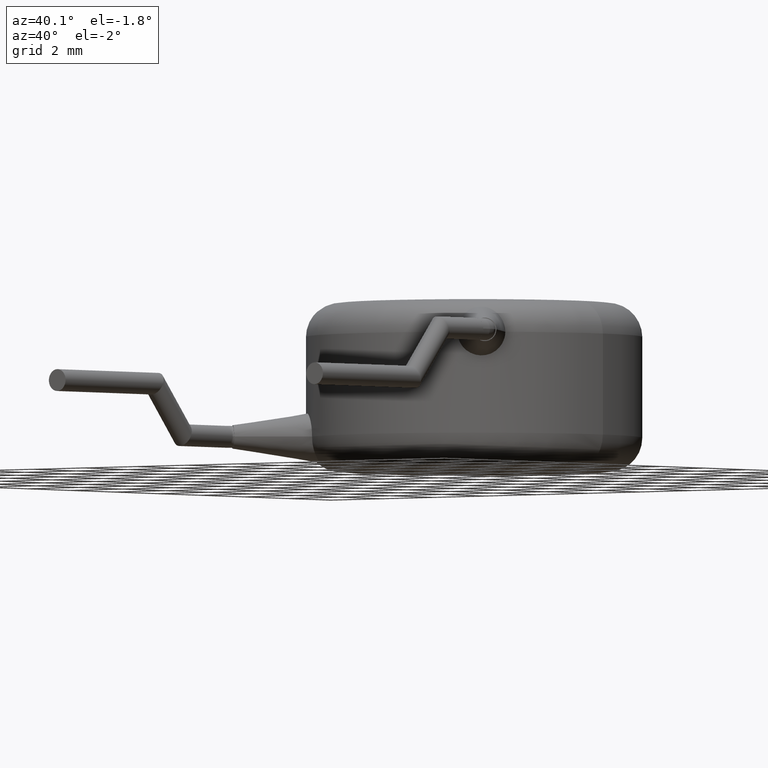
[diagram: clean part render]
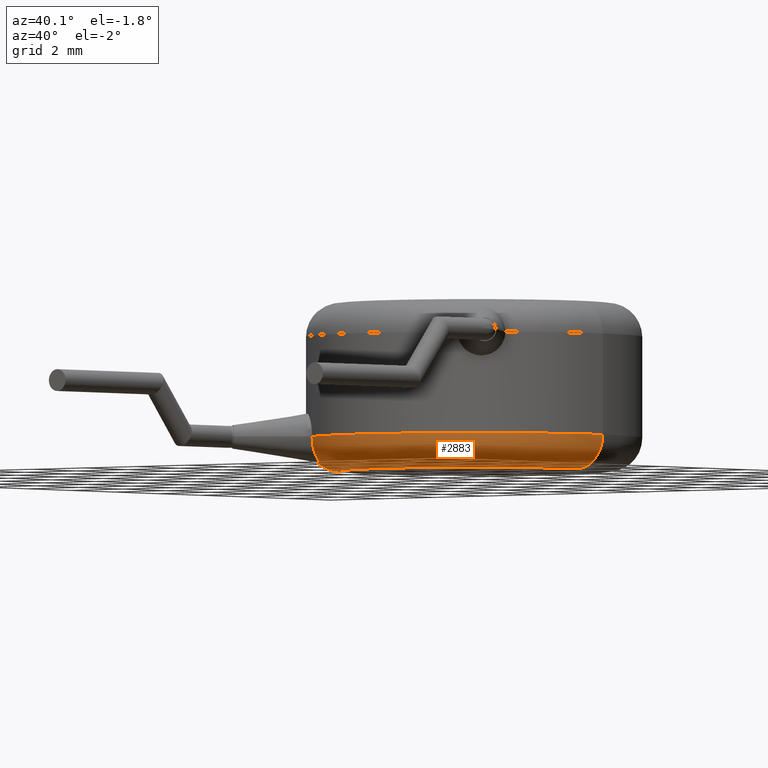
[diagram: same view with one face highlighted and labeled with its STEP entity id]
A machine part, auxiliary view. The second image highlights one B-rep face of the part: STEP entity #2883.
In plain terms, the highlighted toroidal blend (fillet) surface has major radius 4 mm and minor (blend) radius 1 mm.
Its self-contained STEP definition (entity closure, byte-faithful):
#14 = EDGE_CURVE ( 'NONE', #1795, #3705, #2581, .T. ) ;
#78 = CARTESIAN_POINT ( 'NONE',  ( 0.0000000000000000000, 0.0000000000000000000, 1.000000000000000000 ) ) ;
#103 = TOROIDAL_SURFACE ( 'NONE', #3587, 4.000000000000000000, 1.000000000000000000 ) ;
#120 = DIRECTION ( 'NONE',  ( 1.000000000000000000, 0.0000000000000000000, 0.0000000000000000000 ) ) ;
#264 = CARTESIAN_POINT ( 'NONE',  ( -3.072059291622477200, -3.492750023696938700, 0.2404634005970098000 ) ) ;
#327 = ORIENTED_EDGE ( 'NONE', *, *, #2403, .F. ) ;
#364 = EDGE_CURVE ( 'NONE', #1089, #4205, #2805, .T. ) ;
#460 = B_SPLINE_CURVE_WITH_KNOTS ( 'NONE', 3,
 ( #616, #4210, #3227, #2195, #1587, #631, #2915, #3257, #264, #2541, #603, #947, #2890, #1255, #4194, #3241, #2870, #1860 ),
 .UNSPECIFIED., .F., .F.,
 ( 4, 2, 2, 2, 2, 2, 2, 2, 4 ),
 ( 1.970102615205929200E-007, 0.0002984710049463917300, 0.0005967449996312628200, 0.0008950189943161330400, 0.001193292989001003400, 0.001491566983685873800, 0.001789840978370743600, 0.002088114973055614200, 0.002386388967740484200 ),
 .UNSPECIFIED. ) ;
#524 = DIRECTION ( 'NONE',  ( 0.0000000000000000000, 0.0000000000000000000, 1.000000000000000000 ) ) ;
#555 = DIRECTION ( 'NONE',  ( 1.000000000000000000, 0.0000000000000000000, 0.0000000000000000000 ) ) ;
#603 = CARTESIAN_POINT ( 'NONE',  ( -3.309192359788206300, -3.310854318465769300, 0.2649321517786398800 ) ) ;
#616 = CARTESIAN_POINT ( 'NONE',  ( -2.823058014839935600, -4.126783668287933100, 1.000000000000004400 ) ) ;
#631 = CARTESIAN_POINT ( 'NONE',  ( -2.911124956685533500, -3.823719998487133100, 0.4018704993733515600 ) ) ;
#834 = CARTESIAN_POINT ( 'NONE',  ( 4.000000000000000000, 0.0000000000000000000, 0.0000000000000000000 ) ) ;
#879 = CARTESIAN_POINT ( 'NONE',  ( -2.823058014839935600, -4.126783668287933100, 1.000000000000004400 ) ) ;
#895 = CIRCLE ( 'NONE', #3890, 5.000000000000000000 ) ;
#947 = CARTESIAN_POINT ( 'NONE',  ( -3.481130804580161400, -3.245703353841556300, 0.3462045990517975100 ) ) ;
#951 = ORIENTED_EDGE ( 'NONE', *, *, #3741, .T. ) ;
#1003 = DIRECTION ( 'NONE',  ( 0.0000000000000000000, 0.0000000000000000000, -1.000000000000000000 ) ) ;
#1089 = VERTEX_POINT ( 'NONE', #834 ) ;
#1090 = DIRECTION ( 'NONE',  ( 0.0000000000000000000, 0.0000000000000000000, 1.000000000000000000 ) ) ;
#1103 = DIRECTION ( 'NONE',  ( 1.224646799147353200E-016, 1.000000000000000000, -0.0000000000000000000 ) ) ;
#1106 = DIRECTION ( 'NONE',  ( 1.000000000000000000, 0.0000000000000000000, 0.0000000000000000000 ) ) ;
#1129 = AXIS2_PLACEMENT_3D ( 'NONE', #2718, #1103, #1413 ) ;
#1176 = CARTESIAN_POINT ( 'NONE',  ( 0.0000000000000000000, 0.0000000000000000000, 1.000000000000000000 ) ) ;
#1255 = CARTESIAN_POINT ( 'NONE',  ( -3.705754759512826600, -3.192957098633625500, 0.5392175475870849600 ) ) ;
#1262 = CIRCLE ( 'NONE', #3217, 1.000000000000000000 ) ;
#1263 = CARTESIAN_POINT ( 'NONE',  ( -3.872187539807324900, -3.163252069715737600, 1.000000000000000000 ) ) ;
#1274 = CARTESIAN_POINT ( 'NONE',  ( -5.000000000000000000, 0.0000000000000000000, 1.000000000000000000 ) ) ;
#1310 = VERTEX_POINT ( 'NONE', #879 ) ;
#1368 = CARTESIAN_POINT ( 'NONE',  ( 0.0000000000000000000, 0.0000000000000000000, 1.000000000000000000 ) ) ;
#1413 = DIRECTION ( 'NONE',  ( -1.000000000000000000, 1.224646799147353500E-016, 0.0000000000000000000 ) ) ;
#1587 = CARTESIAN_POINT ( 'NONE',  ( -2.867117632418569400, -3.962399801891341800, 0.5380820133785808600 ) ) ;
#1795 = VERTEX_POINT ( 'NONE', #1274 ) ;
#1860 = CARTESIAN_POINT ( 'NONE',  ( -3.872187539807324900, -3.163252069715737600, 1.000000000000000000 ) ) ;
#1957 = EDGE_CURVE ( 'NONE', #1089, #3555, #1262, .T. ) ;
#1988 = CIRCLE ( 'NONE', #1129, 1.000000000000000000 ) ;
#2149 = CARTESIAN_POINT ( 'NONE',  ( -4.000000000000000000, 5.510910596163088600E-016, 0.0000000000000000000 ) ) ;
#2195 = CARTESIAN_POINT ( 'NONE',  ( -2.850878378383848900, -4.021783389064993700, 0.6196073785444997700 ) ) ;
#2341 = FACE_OUTER_BOUND ( 'NONE', #3093, .T. ) ;
#2353 = DIRECTION ( 'NONE',  ( 0.0000000000000000000, 0.0000000000000000000, 1.000000000000000000 ) ) ;
#2403 = EDGE_CURVE ( 'NONE', #4205, #1795, #1988, .T. ) ;
#2541 = CARTESIAN_POINT ( 'NONE',  ( -3.219627429390281600, -3.357306775829845600, 0.2405240429769758300 ) ) ;
#2581 = CIRCLE ( 'NONE', #2838, 5.000000000000000000 ) ;
#2616 = DIRECTION ( 'NONE',  ( 0.0000000000000000000, -1.000000000000000000, 0.0000000000000000000 ) ) ;
#2665 = AXIS2_PLACEMENT_3D ( 'NONE', #2923, #3267, #3919 ) ;
#2687 = ORIENTED_EDGE ( 'NONE', *, *, #14, .F. ) ;
#2718 = CARTESIAN_POINT ( 'NONE',  ( -4.000000000000000000, 4.898587196589412800E-016, 1.000000000000000000 ) ) ;
#2805 = CIRCLE ( 'NONE', #2665, 4.000000000000000000 ) ;
#2838 = AXIS2_PLACEMENT_3D ( 'NONE', #1176, #524, #555 ) ;
#2864 = EDGE_CURVE ( 'NONE', #1310, #3555, #895, .T. ) ;
#2870 = CARTESIAN_POINT ( 'NONE',  ( -3.872187539807348900, -3.163252069715734000, 0.8988684771963274500 ) ) ;
#2883 = ADVANCED_FACE ( 'NONE', ( #2341 ), #103, .T. ) ;
#2890 = CARTESIAN_POINT ( 'NONE',  ( -3.562386007480774300, -3.225339443313985900, 0.4014490795724047200 ) ) ;
#2915 = CARTESIAN_POINT ( 'NONE',  ( -2.938851642330375700, -3.743251600751109600, 0.3457850396933058200 ) ) ;
#2923 = CARTESIAN_POINT ( 'NONE',  ( 0.0000000000000000000, 0.0000000000000000000, 0.0000000000000000000 ) ) ;
#3086 = ORIENTED_EDGE ( 'NONE', *, *, #2864, .F. ) ;
#3093 = EDGE_LOOP ( 'NONE', ( #327, #3914, #3399, #3086, #951, #2687 ) ) ;
#3217 = AXIS2_PLACEMENT_3D ( 'NONE', #3680, #2616, #1003 ) ;
#3227 = CARTESIAN_POINT ( 'NONE',  ( -2.828800223545330900, -4.103994438943705500, 0.8001532874139146700 ) ) ;
#3241 = CARTESIAN_POINT ( 'NONE',  ( -3.849475709517150800, -3.166952976828160800, 0.8012785293013970900 ) ) ;
#3257 = CARTESIAN_POINT ( 'NONE',  ( -3.017379956470823500, -3.579475057736493800, 0.2654660719464652100 ) ) ;
#3267 = DIRECTION ( 'NONE',  ( -0.0000000000000000000, -0.0000000000000000000, -1.000000000000000000 ) ) ;
#3399 = ORIENTED_EDGE ( 'NONE', *, *, #1957, .T. ) ;
#3555 = VERTEX_POINT ( 'NONE', #3571 ) ;
#3571 = CARTESIAN_POINT ( 'NONE',  ( 5.000000000000000000, 6.123233995736766300E-016, 1.000000000000000000 ) ) ;
#3587 = AXIS2_PLACEMENT_3D ( 'NONE', #1368, #2353, #1106 ) ;
#3680 = CARTESIAN_POINT ( 'NONE',  ( 4.000000000000000000, 0.0000000000000000000, 1.000000000000000000 ) ) ;
#3705 = VERTEX_POINT ( 'NONE', #1263 ) ;
#3741 = EDGE_CURVE ( 'NONE', #1310, #3705, #460, .T. ) ;
#3890 = AXIS2_PLACEMENT_3D ( 'NONE', #78, #1090, #120 ) ;
#3914 = ORIENTED_EDGE ( 'NONE', *, *, #364, .F. ) ;
#3919 = DIRECTION ( 'NONE',  ( 1.000000000000000000, 0.0000000000000000000, 0.0000000000000000000 ) ) ;
#4194 = CARTESIAN_POINT ( 'NONE',  ( -3.764941737286540600, -3.182103013925660800, 0.6189565906208321900 ) ) ;
#4205 = VERTEX_POINT ( 'NONE', #2149 ) ;
#4210 = CARTESIAN_POINT ( 'NONE',  ( -2.823058014839936000, -4.126783668287934900, 0.8990691886558460600 ) ) ;